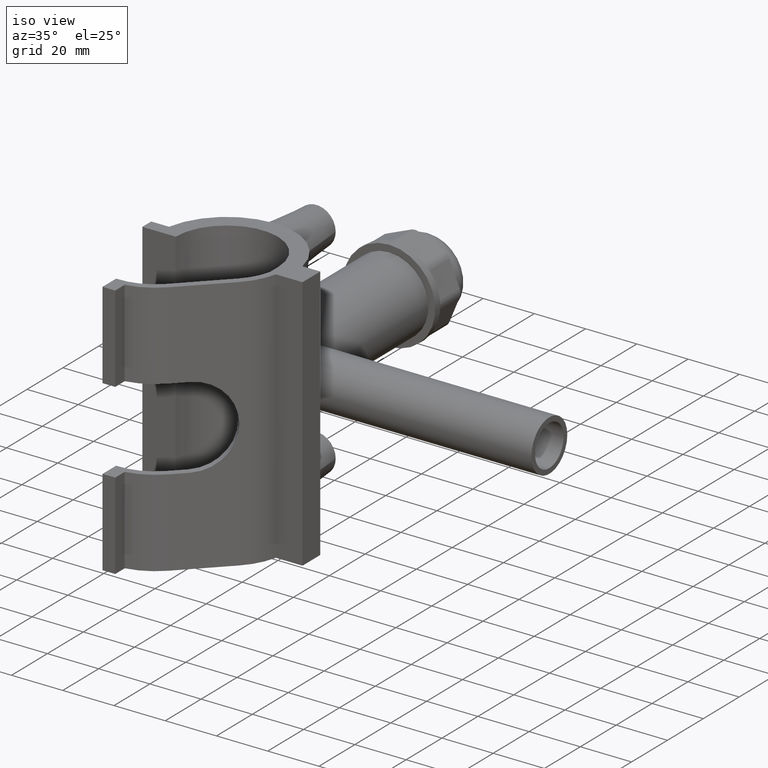
[diagram: clean part render]
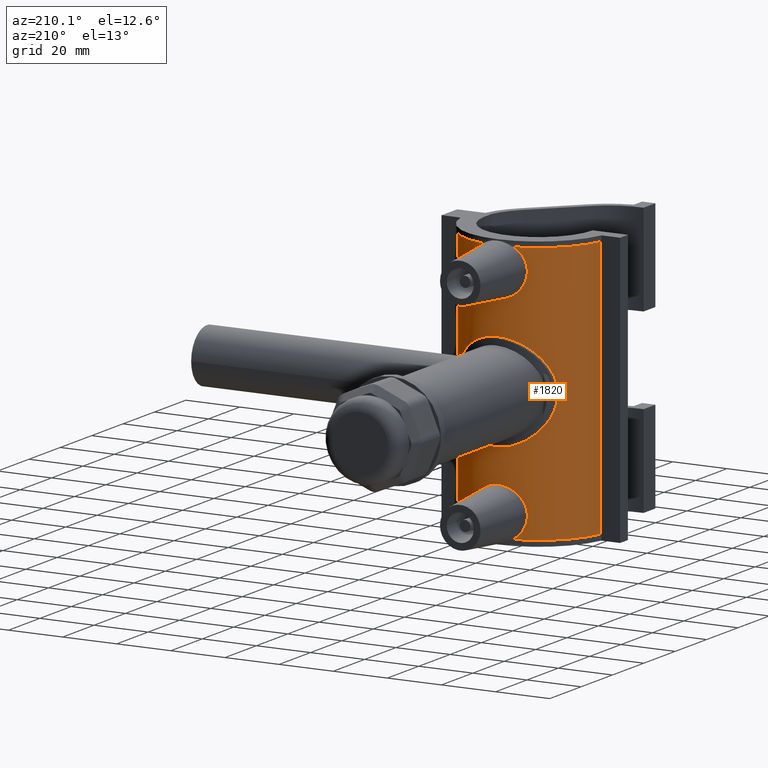
[diagram: tour spotlight — one face highlighted and labeled with its STEP entity id]
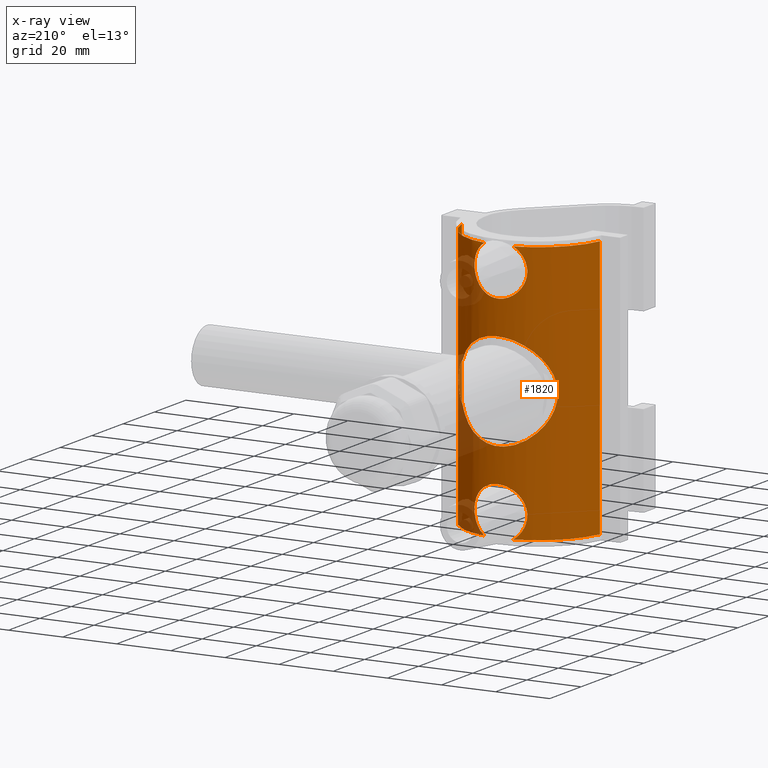
[diagram: x-ray of the same camera — body ghosted, this tour face saturated]
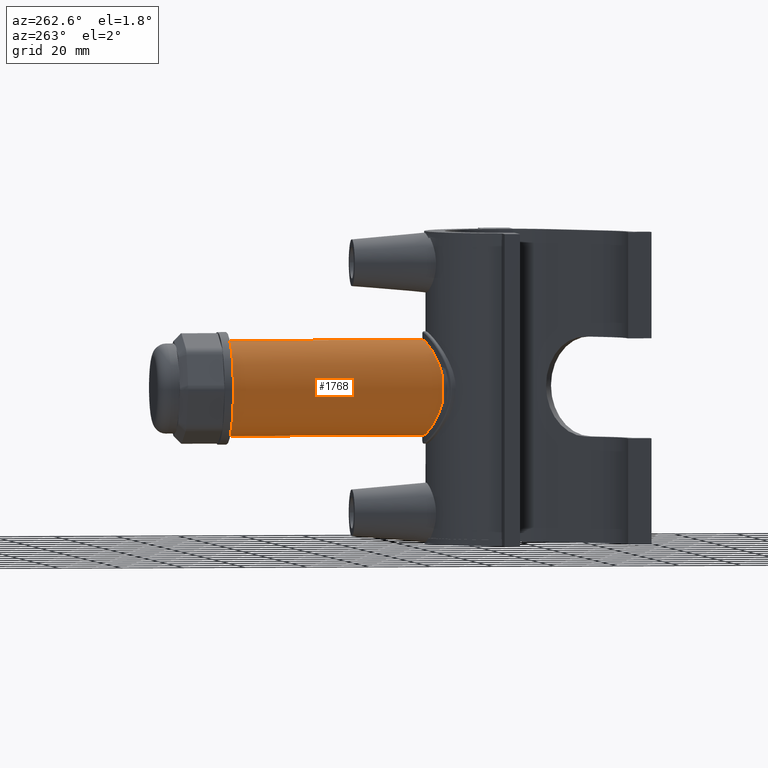
[diagram: tour spotlight — one face highlighted and labeled with its STEP entity id]
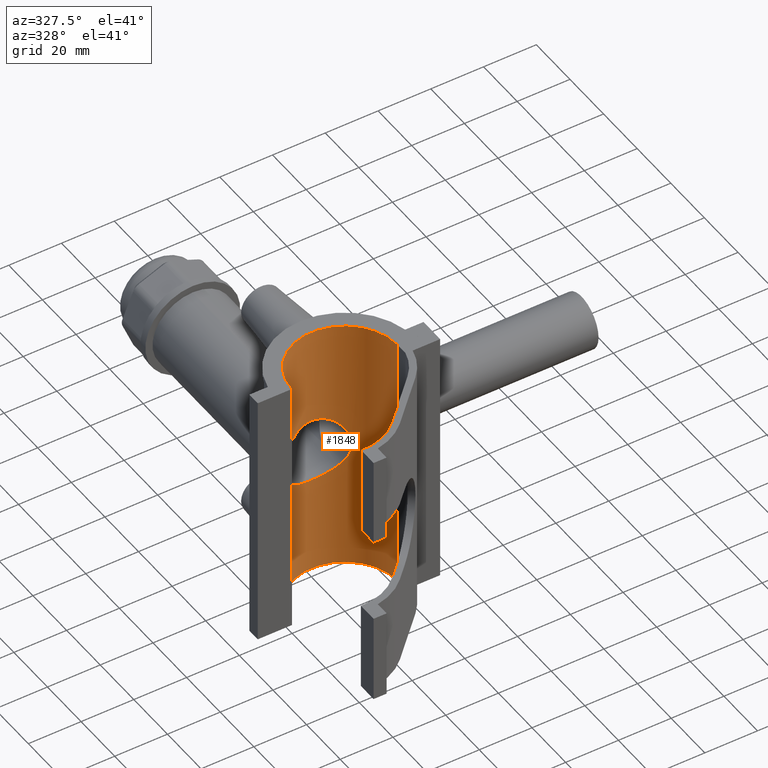
[diagram: tour spotlight — one face highlighted and labeled with its STEP entity id]
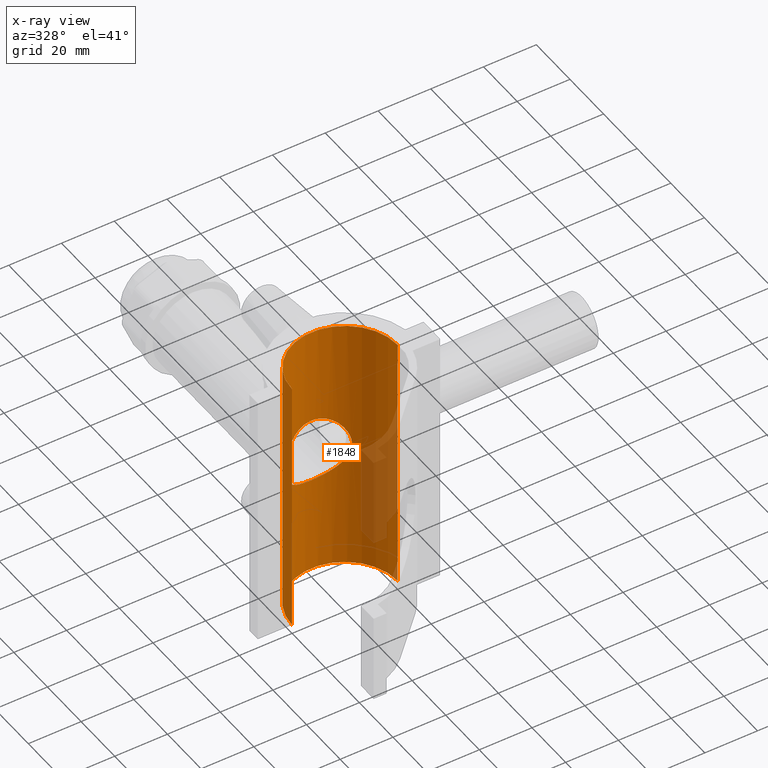
[diagram: x-ray of the same camera — body ghosted, this tour face saturated]
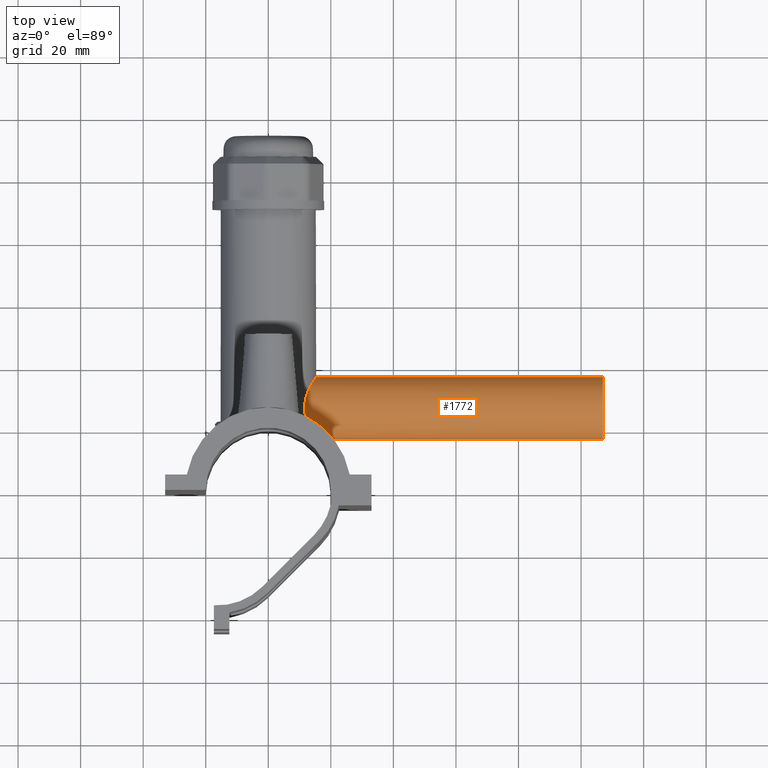
[diagram: tour spotlight — one face highlighted and labeled with its STEP entity id]
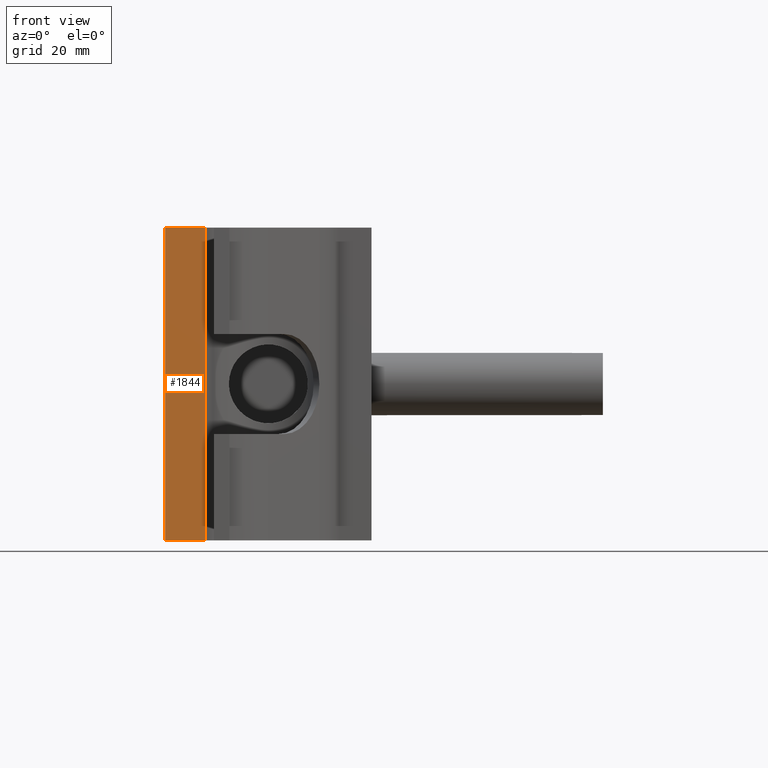
[diagram: tour spotlight — one face highlighted and labeled with its STEP entity id]
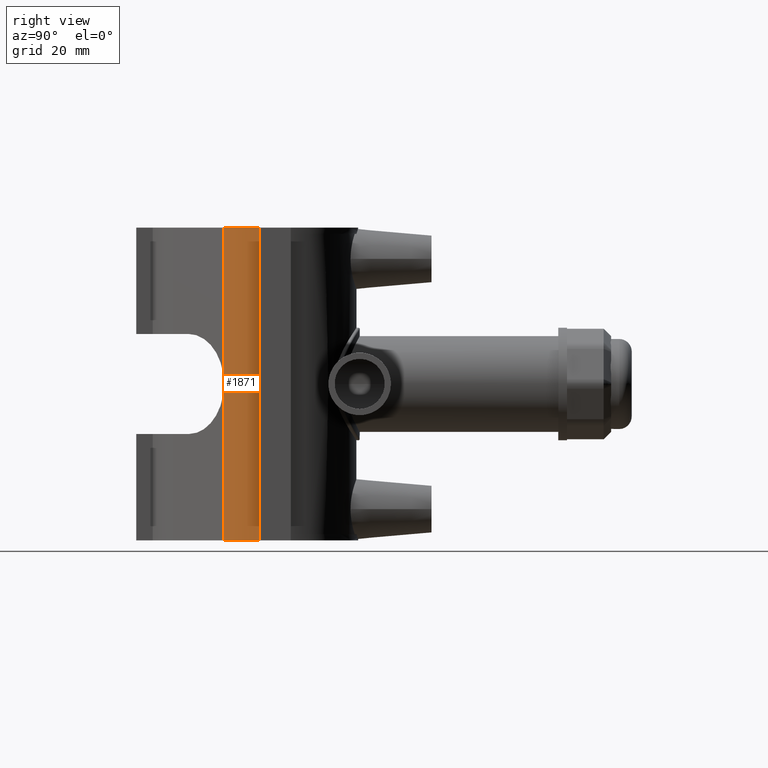
[diagram: tour spotlight — one face highlighted and labeled with its STEP entity id]
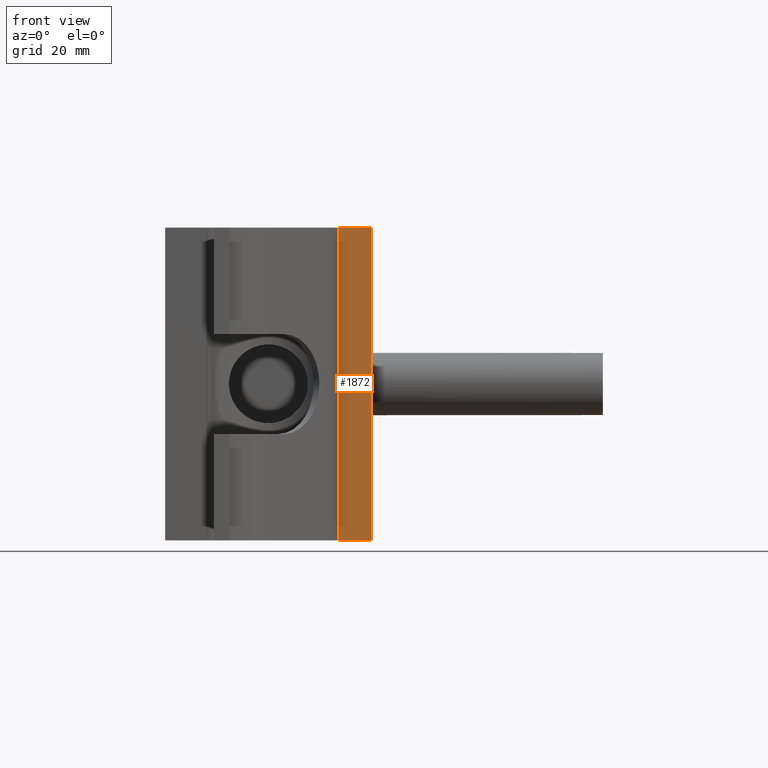
[diagram: tour spotlight — one face highlighted and labeled with its STEP entity id]
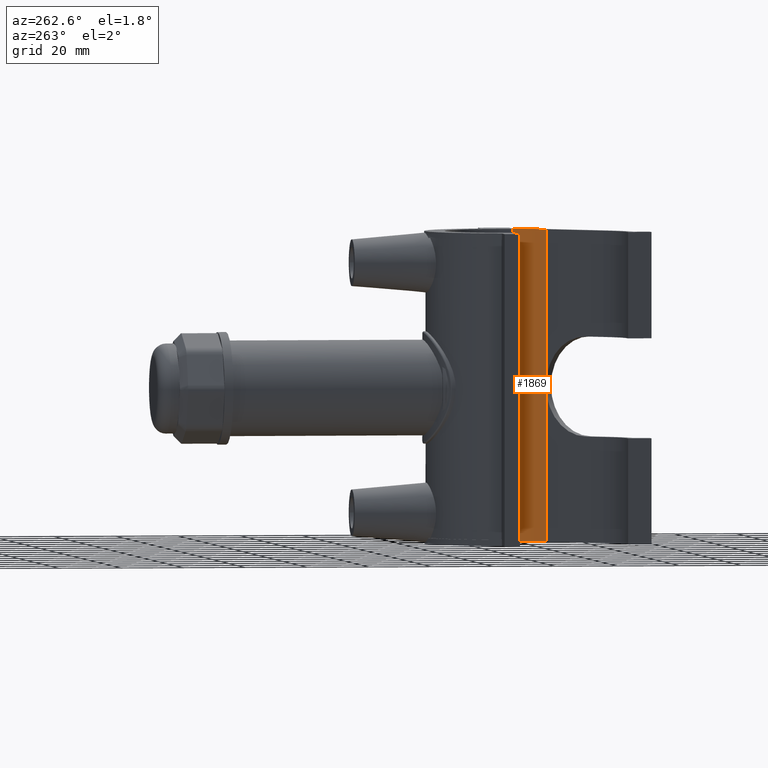
[diagram: tour spotlight — one face highlighted and labeled with its STEP entity id]
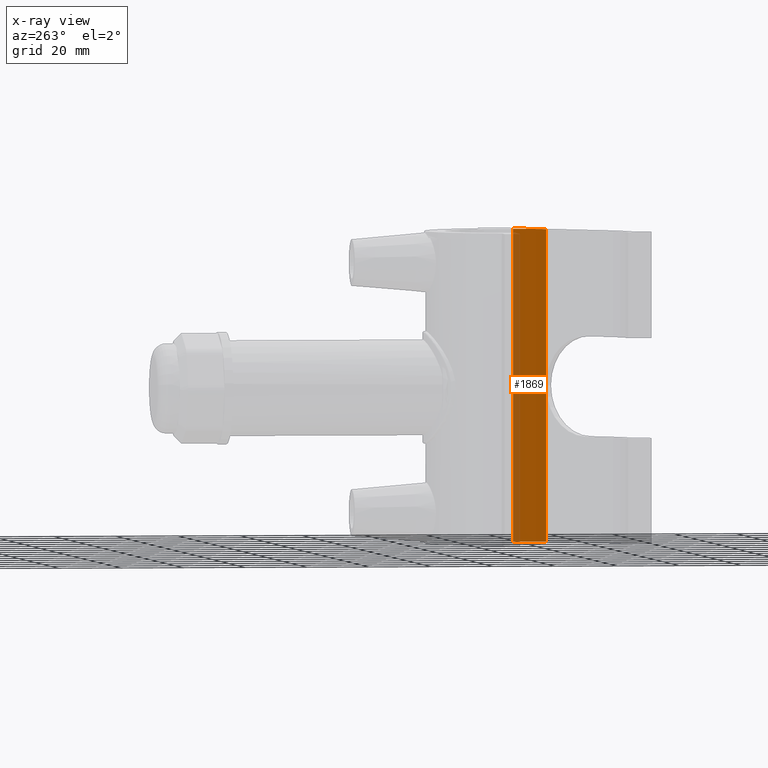
[diagram: x-ray of the same camera — body ghosted, this tour face saturated]
A machine part: a face-by-face anatomy tour. The part has 111 B-rep faces; the first image is the clean iso view, then the 8 largest visible faces are spotlighted one at a time (largest first), each with its STEP entity span.

Face 1 — auxiliary view, entity #1820. An x-ray twin of the same camera follows (body ghosted, this face saturated) — the face is partly hidden behind the body. In plain terms, the highlighted cylindrical surface (partial cylindrical patch) has radius 26 mm, axis along (0, 0, 1).
Definition (entity closure, byte-faithful):
#108=LINE('',#3112,#253);
#109=LINE('',#3153,#254);
#253=VECTOR('',#2362,96.);
#254=VECTOR('',#2367,96.);
#343=FACE_BOUND('',#589,.T.);
#367=B_SPLINE_CURVE_WITH_KNOTS('',3,(#2855,#2856,#2857,#2858,#2859,#2860,
#2861,#2862,#2863,#2864,#2865,#2866,#2867,#2868),.UNSPECIFIED.,.F.,.F.,
(4,2,2,2,2,2,4),(1.65358895762354,1.88649410704089,2.2050956171535,2.52369712726612,
2.84229863737873,3.16090014749134,3.39380529690869),.UNSPECIFIED.);
#370=B_SPLINE_CURVE_WITH_KNOTS('',3,(#3116,#3117,#3118,#3119,#3120,#3121,
#3122,#3123,#3124,#3125,#3126,#3127,#3128,#3129,#3130,#3131,#3132,#3133,
#3134,#3135,#3136,#3137,#3138,#3139,#3140),.UNSPECIFIED.,.F.,.F.,(4,2,2,
3,2,2,2,2,2,2,2,4),(4.97357930476659,5.16051763266937,5.53021928248246,
5.89992093229554,6.26962258210863,6.63932423192171,7.00711269864557,7.37490116536943,
7.74268963209329,8.11047809881715,8.48017974863023,8.84988139844332),
 .UNSPECIFIED.);
#371=B_SPLINE_CURVE_WITH_KNOTS('',3,(#3142,#3143,#3144,#3145,#3146,#3147,
#3148,#3149),.UNSPECIFIED.,.F.,.F.,(4,2,2,4),(2.94996046614777,3.31966211596086,
3.68936376577394,3.87630209367673),.UNSPECIFIED.);
#372=B_SPLINE_CURVE_WITH_KNOTS('',3,(#3157,#3158,#3159,#3160,#3161,#3162,
#3163,#3164),.UNSPECIFIED.,.F.,.F.,(4,2,2,4),(4.97357930476659,5.16051763266937,
5.53021928248246,5.89992093229554),.UNSPECIFIED.);
#373=B_SPLINE_CURVE_WITH_KNOTS('',3,(#3165,#3166,#3167,#3168,#3169,#3170,
#3171,#3172,#3173,#3174,#3175,#3176,#3177,#3178,#3179,#3180,#3181,#3182,
#3183,#3184,#3185,#3186,#3187,#3188),.UNSPECIFIED.,.F.,.F.,(4,2,2,2,2,2,
2,2,2,2,2,4),(0.,0.369701649813085,0.739403299626169,1.10719176635003,1.47498023307389,
1.84276869979774,2.2105571665216,2.58025881633469,2.94996046614777,3.31966211596086,
3.68936376577394,3.87630209367673),.UNSPECIFIED.);
#374=B_SPLINE_CURVE_WITH_KNOTS('',3,(#3189,#3190,#3191,#3192,#3193,#3194,
#3195,#3196,#3197,#3198,#3199,#3200,#3201,#3202,#3203,#3204,#3205,#3206,
#3207,#3208,#3209,#3210,#3211,#3212,#3213,#3214,#3215,#3216,#3217,#3218,
#3219,#3220,#3221,#3222,#3223,#3224,#3225,#3226,#3227,#3228,#3229,#3230,
#3231,#3232,#3233,#3234,#3235,#3236,#3237,#3238),.UNSPECIFIED.,.F.,.F.,
(4,2,2,2,2,2,2,2,2,2,2,2,2,2,2,2,2,2,2,2,2,2,2,2,4),(0.740998140179718,
1.4282482506989,1.78051013827437,2.13277202584984,2.48503391342532,2.83729580100079,
3.18955768857626,3.54181957615173,3.8940814637272,4.24634335130267,4.96046747665213,
5.31752953932685,5.67459160200158,6.0316536646763,6.38871572735103,7.10283985270048,
7.45510174027595,7.80736362785142,8.15962551542689,8.51188740300236,8.86414929057783,
9.2164111781533,9.56867306572878,9.92093495330425,10.6081850638234),
 .UNSPECIFIED.);
#394=CYLINDRICAL_SURFACE('',#1985,26.);
#466=FACE_OUTER_BOUND('',#588,.T.);
#588=EDGE_LOOP('',(#1424,#1425,#1426,#1427,#1428,#1429,#1430,#1431,#1432,
#1433));
#589=EDGE_LOOP('',(#1434,#1435));
#699=CIRCLE('',#1986,26.);
#700=CIRCLE('',#1987,26.);
#701=CIRCLE('',#1988,26.);
#702=CIRCLE('',#1989,26.);
#753=VERTEX_POINT('',#2849);
#754=VERTEX_POINT('',#2854);
#825=VERTEX_POINT('',#3108);
#826=VERTEX_POINT('',#3109);
#827=VERTEX_POINT('',#3111);
#828=VERTEX_POINT('',#3113);
#829=VERTEX_POINT('',#3115);
#830=VERTEX_POINT('',#3141);
#831=VERTEX_POINT('',#3150);
#832=VERTEX_POINT('',#3152);
#833=VERTEX_POINT('',#3154);
#834=VERTEX_POINT('',#3156);
#933=EDGE_CURVE('',#754,#753,#367,.T.);
#1045=EDGE_CURVE('',#825,#826,#699,.T.);
#1046=EDGE_CURVE('',#827,#826,#108,.T.);
#1047=EDGE_CURVE('',#827,#828,#700,.T.);
#1048=EDGE_CURVE('',#828,#829,#370,.T.);
#1049=EDGE_CURVE('',#829,#830,#371,.T.);
#1050=EDGE_CURVE('',#830,#831,#701,.T.);
#1051=EDGE_CURVE('',#831,#832,#109,.T.);
#1052=EDGE_CURVE('',#832,#833,#702,.T.);
#1053=EDGE_CURVE('',#833,#834,#372,.T.);
#1054=EDGE_CURVE('',#834,#825,#373,.T.);
#1055=EDGE_CURVE('',#753,#754,#374,.T.);
#1424=ORIENTED_EDGE('',*,*,#1045,.T.);
#1425=ORIENTED_EDGE('',*,*,#1046,.F.);
#1426=ORIENTED_EDGE('',*,*,#1047,.T.);
#1427=ORIENTED_EDGE('',*,*,#1048,.T.);
#1428=ORIENTED_EDGE('',*,*,#1049,.T.);
#1429=ORIENTED_EDGE('',*,*,#1050,.T.);
#1430=ORIENTED_EDGE('',*,*,#1051,.T.);
#1431=ORIENTED_EDGE('',*,*,#1052,.T.);
#1432=ORIENTED_EDGE('',*,*,#1053,.T.);
#1433=ORIENTED_EDGE('',*,*,#1054,.T.);
#1434=ORIENTED_EDGE('',*,*,#933,.T.);
#1435=ORIENTED_EDGE('',*,*,#1055,.T.);
#1820=ADVANCED_FACE('',(#466,#343),#394,.T.);
#1985=AXIS2_PLACEMENT_3D('',#3107,#2358,#2359);
#1986=AXIS2_PLACEMENT_3D('',#3110,#2360,#2361);
#1987=AXIS2_PLACEMENT_3D('',#3114,#2363,#2364);
#1988=AXIS2_PLACEMENT_3D('',#3151,#2365,#2366);
#1989=AXIS2_PLACEMENT_3D('',#3155,#2368,#2369);
#2358=DIRECTION('center_axis',(0.,0.,1.));
#2359=DIRECTION('ref_axis',(1.,0.,0.));
#2360=DIRECTION('center_axis',(0.,0.,1.));
#2361=DIRECTION('ref_axis',(1.,0.,0.));
#2362=DIRECTION('',(0.,0.,-1.));
#2363=DIRECTION('center_axis',(0.,0.,-1.));
#2364=DIRECTION('ref_axis',(1.,0.,0.));
#2365=DIRECTION('center_axis',(0.,0.,-1.));
#2366=DIRECTION('ref_axis',(1.,0.,0.));
#2367=DIRECTION('',(0.,0.,-1.));
#2368=DIRECTION('center_axis',(0.,0.,1.));
#2369=DIRECTION('ref_axis',(1.,0.,0.));
#2849=CARTESIAN_POINT('',(16.4745800099161,20.114378277662,7.25177312778545));
#2854=CARTESIAN_POINT('',(16.4745800099161,20.114378277662,-7.25177312778545));
#2855=CARTESIAN_POINT('Ctrl Pts',(16.4745800099159,20.114378277662,-7.25177312778516));
#2856=CARTESIAN_POINT('Ctrl Pts',(16.9745973553065,19.7048415945355,-6.86291448152867));
#2857=CARTESIAN_POINT('Ctrl Pts',(17.4328907652017,19.2980031376088,-6.41197461018095));
#2858=CARTESIAN_POINT('Ctrl Pts',(18.4050355010115,18.3807199691082,-5.14980296472239));
#2859=CARTESIAN_POINT('Ctrl Pts',(18.8874838523196,17.8740711701891,-4.22866055725826));
#2860=CARTESIAN_POINT('Ctrl Pts',(19.5190983693987,17.1820900864112,-2.18468285039914));
#2861=CARTESIAN_POINT('Ctrl Pts',(19.672315572906,17.,-1.06200503370871));
#2862=CARTESIAN_POINT('Ctrl Pts',(19.672315572906,17.,1.06200503370871));
#2863=CARTESIAN_POINT('Ctrl Pts',(19.5190983693987,17.1820900864112,2.18468285039914));
#2864=CARTESIAN_POINT('Ctrl Pts',(18.8874838523196,17.8740711701891,4.22866055725826));
#2865=CARTESIAN_POINT('Ctrl Pts',(18.4050355010115,18.3807199691082,5.14980296472239));
#2866=CARTESIAN_POINT('Ctrl Pts',(17.4328907652017,19.2980031376088,6.41197461018095));
#2867=CARTESIAN_POINT('Ctrl Pts',(16.9745973553065,19.7048415945355,6.86291448152867));
#2868=CARTESIAN_POINT('Ctrl Pts',(16.4745800099159,20.114378277662,7.25177312778516));
#3107=CARTESIAN_POINT('Origin',(0.,0.,0.));
#3108=CARTESIAN_POINT('',(-5.3951674336109,25.4340749460896,-48.));
#3109=CARTESIAN_POINT('',(-25.5147016443462,5.,-48.));
#3110=CARTESIAN_POINT('Origin',(0.,0.,-48.));
#3111=CARTESIAN_POINT('',(-25.5147016443462,5.,48.));
#3112=CARTESIAN_POINT('',(-25.5147016443462,5.,0.));
#3113=CARTESIAN_POINT('',(-5.3951674336109,25.4340749460896,48.));
#3114=CARTESIAN_POINT('Origin',(0.,0.,48.));
#3115=CARTESIAN_POINT('',(9.76630249195255,24.096043983104,40.));
#3116=CARTESIAN_POINT('Ctrl Pts',(-5.3951674336109,25.4340749460896,48.));
#3117=CARTESIAN_POINT('Ctrl Pts',(-5.93451184178679,25.3196672708485,47.6483411838531));
#3118=CARTESIAN_POINT('Ctrl Pts',(-6.42972331783999,25.1965310724773,47.2485693515817));
#3119=CARTESIAN_POINT('Ctrl Pts',(-7.73484343137409,24.8390807172828,45.9790627512517));
#3120=CARTESIAN_POINT('Ctrl Pts',(-8.49387395753575,24.5794092044208,44.9067073127729));
#3121=CARTESIAN_POINT('Ctrl Pts',(-9.50996216014971,24.2044189053942,42.5340450094426));
#3122=CARTESIAN_POINT('Ctrl Pts',(-9.76630249195255,24.096043983104,41.2323388327103));
#3123=CARTESIAN_POINT('Ctrl Pts',(-9.76630249195255,24.096043983104,40.));
#3124=CARTESIAN_POINT('Ctrl Pts',(-9.76630249195255,24.096043983104,38.7676611672897));
#3125=CARTESIAN_POINT('Ctrl Pts',(-9.50996216014971,24.2044189053943,37.4659549905574));
#3126=CARTESIAN_POINT('Ctrl Pts',(-8.49387395753574,24.5794092044208,35.0932926872271));
#3127=CARTESIAN_POINT('Ctrl Pts',(-7.73484343137409,24.8390807172828,34.0209372487483));
#3128=CARTESIAN_POINT('Ctrl Pts',(-6.00569492756996,25.3126652865951,32.3389729484772));
#3129=CARTESIAN_POINT('Ctrl Pts',(-4.91758131382388,25.5592379122145,31.6109466468528));
#3130=CARTESIAN_POINT('Ctrl Pts',(-2.528128502029,25.9049380292898,30.6412987795354));
#3131=CARTESIAN_POINT('Ctrl Pts',(-1.22596155574619,26.,30.4002720753778));
#3132=CARTESIAN_POINT('Ctrl Pts',(1.22596155574619,26.,30.4002720753778));
#3133=CARTESIAN_POINT('Ctrl Pts',(2.528128502029,25.9049380292898,30.6412987795354));
#3134=CARTESIAN_POINT('Ctrl Pts',(4.91758131382388,25.5592379122145,31.6109466468528));
#3135=CARTESIAN_POINT('Ctrl Pts',(6.00569492756995,25.3126652865951,32.3389729484772));
#3136=CARTESIAN_POINT('Ctrl Pts',(7.73484343137408,24.8390807172828,34.0209372487483));
#3137=CARTESIAN_POINT('Ctrl Pts',(8.49387395753574,24.5794092044208,35.0932926872271));
#3138=CARTESIAN_POINT('Ctrl Pts',(9.50996216014971,24.2044189053942,37.4659549905574));
#3139=CARTESIAN_POINT('Ctrl Pts',(9.76630249195255,24.096043983104,38.7676611672897));
#3140=CARTESIAN_POINT('Ctrl Pts',(9.76630249195255,24.096043983104,40.));
#3141=CARTESIAN_POINT('',(5.3951674336109,25.4340749460896,48.));
#3142=CARTESIAN_POINT('Ctrl Pts',(9.76630249195255,24.096043983104,40.));
#3143=CARTESIAN_POINT('Ctrl Pts',(9.76630249195255,24.096043983104,41.2323388327103));
#3144=CARTESIAN_POINT('Ctrl Pts',(9.50996216014971,24.2044189053942,42.5340450094426));
#3145=CARTESIAN_POINT('Ctrl Pts',(8.49387395753575,24.5794092044208,44.9067073127729));
#3146=CARTESIAN_POINT('Ctrl Pts',(7.73484343137409,24.8390807172828,45.9790627512517));
#3147=CARTESIAN_POINT('Ctrl Pts',(6.42972331783999,25.1965310724773,47.2485693515817));
#3148=CARTESIAN_POINT('Ctrl Pts',(5.93451184178679,25.3196672708485,47.6483411838531));
#3149=CARTESIAN_POINT('Ctrl Pts',(5.3951674336109,25.4340749460896,48.));
#3150=CARTESIAN_POINT('',(25.5147016443462,4.99999999999999,48.));
#3151=CARTESIAN_POINT('Origin',(0.,0.,48.));
#3152=CARTESIAN_POINT('',(25.5147016443462,4.99999999999999,-48.));
#3153=CARTESIAN_POINT('',(25.5147016443462,4.99999999999999,0.));
#3154=CARTESIAN_POINT('',(5.3951674336109,25.4340749460896,-48.));
#3155=CARTESIAN_POINT('Origin',(0.,0.,-48.));
#3156=CARTESIAN_POINT('',(9.76630249195255,24.096043983104,-40.));
#3157=CARTESIAN_POINT('Ctrl Pts',(5.3951674336109,25.4340749460896,-48.));
#3158=CARTESIAN_POINT('Ctrl Pts',(5.93451184178679,25.3196672708485,-47.6483411838531));
#3159=CARTESIAN_POINT('Ctrl Pts',(6.42972331783999,25.1965310724773,-47.2485693515817));
#3160=CARTESIAN_POINT('Ctrl Pts',(7.73484343137409,24.8390807172828,-45.9790627512517));
#3161=CARTESIAN_POINT('Ctrl Pts',(8.49387395753574,24.5794092044208,-44.9067073127729));
#3162=CARTESIAN_POINT('Ctrl Pts',(9.5099621601497,24.2044189053942,-42.5340450094426));
#3163=CARTESIAN_POINT('Ctrl Pts',(9.76630249195255,24.096043983104,-41.2323388327103));
#3164=CARTESIAN_POINT('Ctrl Pts',(9.76630249195255,24.096043983104,-40.));
#3165=CARTESIAN_POINT('Ctrl Pts',(9.76630249195255,24.096043983104,-40.));
#3166=CARTESIAN_POINT('Ctrl Pts',(9.76630249195255,24.096043983104,-38.7676611672897));
#3167=CARTESIAN_POINT('Ctrl Pts',(9.5099621601497,24.2044189053943,-37.4659549905574));
#3168=CARTESIAN_POINT('Ctrl Pts',(8.49387395753574,24.5794092044208,-35.0932926872271));
#3169=CARTESIAN_POINT('Ctrl Pts',(7.73484343137408,24.8390807172828,-34.0209372487483));
#3170=CARTESIAN_POINT('Ctrl Pts',(6.00569492756995,25.3126652865951,-32.3389729484772));
#3171=CARTESIAN_POINT('Ctrl Pts',(4.91758131382388,25.5592379122145,-31.6109466468528));
#3172=CARTESIAN_POINT('Ctrl Pts',(2.528128502029,25.9049380292898,-30.6412987795354));
#3173=CARTESIAN_POINT('Ctrl Pts',(1.22596155574619,26.,-30.4002720753778));
#3174=CARTESIAN_POINT('Ctrl Pts',(-1.22596155574619,26.,-30.4002720753778));
#3175=CARTESIAN_POINT('Ctrl Pts',(-2.528128502029,25.9049380292898,-30.6412987795354));
#3176=CARTESIAN_POINT('Ctrl Pts',(-4.91758131382388,25.5592379122145,-31.6109466468528));
#3177=CARTESIAN_POINT('Ctrl Pts',(-6.00569492756996,25.3126652865951,-32.3389729484772));
#3178=CARTESIAN_POINT('Ctrl Pts',(-7.73484343137409,24.8390807172828,-34.0209372487483));
#3179=CARTESIAN_POINT('Ctrl Pts',(-8.49387395753574,24.5794092044208,-35.0932926872271));
#3180=CARTESIAN_POINT('Ctrl Pts',(-9.50996216014971,24.2044189053943,-37.4659549905574));
#3181=CARTESIAN_POINT('Ctrl Pts',(-9.76630249195255,24.096043983104,-38.7676611672897));
#3182=CARTESIAN_POINT('Ctrl Pts',(-9.76630249195255,24.096043983104,-41.2323388327103));
#3183=CARTESIAN_POINT('Ctrl Pts',(-9.50996216014972,24.2044189053942,-42.5340450094426));
#3184=CARTESIAN_POINT('Ctrl Pts',(-8.49387395753575,24.5794092044208,-44.9067073127729));
#3185=CARTESIAN_POINT('Ctrl Pts',(-7.73484343137408,24.8390807172828,-45.9790627512517));
#3186=CARTESIAN_POINT('Ctrl Pts',(-6.42972331783999,25.1965310724773,-47.2485693515817));
#3187=CARTESIAN_POINT('Ctrl Pts',(-5.93451184178679,25.3196672708485,-47.6483411838531));
#3188=CARTESIAN_POINT('Ctrl Pts',(-5.39516743361091,25.4340749460896,-48.));
#3189=CARTESIAN_POINT('Ctrl Pts',(16.4745800099161,20.1143782776618,7.25177312778561));
#3190=CARTESIAN_POINT('Ctrl Pts',(15.5528785373224,20.8692932169103,9.34569476431894));
#3191=CARTESIAN_POINT('Ctrl Pts',(14.2334944534669,21.8263328679884,11.2223496692489));
#3192=CARTESIAN_POINT('Ctrl Pts',(11.9562149861488,23.1048079803976,13.4996291365669));
#3193=CARTESIAN_POINT('Ctrl Pts',(11.0808501527128,23.5436566291891,14.2325620782425));
#3194=CARTESIAN_POINT('Ctrl Pts',(9.15831442918429,24.3559907288748,15.5395090124102));
#3195=CARTESIAN_POINT('Ctrl Pts',(8.11101055590943,24.729045980526,16.11359473591));
#3196=CARTESIAN_POINT('Ctrl Pts',(5.90306288556097,25.3469537157066,17.046709025924));
#3197=CARTESIAN_POINT('Ctrl Pts',(4.74002611958919,25.5921162321482,17.4065092815395));
#3198=CARTESIAN_POINT('Ctrl Pts',(2.37563064979923,25.9187314481245,17.8832545139332));
#3199=CARTESIAN_POINT('Ctrl Pts',(1.17420629191824,26.,18.));
#3200=CARTESIAN_POINT('Ctrl Pts',(-1.17420629191824,26.,18.));
#3201=CARTESIAN_POINT('Ctrl Pts',(-2.37563064979923,25.9187314481245,17.8832545139332));
#3202=CARTESIAN_POINT('Ctrl Pts',(-4.74002611958918,25.5921162321482,17.4065092815395));
#3203=CARTESIAN_POINT('Ctrl Pts',(-5.90306288556096,25.3469537157066,17.046709025924));
#3204=CARTESIAN_POINT('Ctrl Pts',(-8.11101055590942,24.729045980526,16.11359473591));
#3205=CARTESIAN_POINT('Ctrl Pts',(-9.15831442918429,24.3559907288748,15.5395090124102));
#3206=CARTESIAN_POINT('Ctrl Pts',(-11.0808501527128,23.5436566291891,14.2325620782425));
#3207=CARTESIAN_POINT('Ctrl Pts',(-11.9562149861488,23.1048079803976,13.4996291365669));
#3208=CARTESIAN_POINT('Ctrl Pts',(-14.2923678885879,21.7932810521422,11.1634762341278));
#3209=CARTESIAN_POINT('Ctrl Pts',(-15.6545213016262,20.7938080945865,9.19797308121408));
#3210=CARTESIAN_POINT('Ctrl Pts',(-17.0441517717604,19.6432831043967,5.90876507937211));
#3211=CARTESIAN_POINT('Ctrl Pts',(-17.4023690971889,19.3200268109012,4.7545801748869));
#3212=CARTESIAN_POINT('Ctrl Pts',(-17.8804412616865,18.8784455823717,2.39547529200529));
#3213=CARTESIAN_POINT('Ctrl Pts',(-18.,18.7616630392937,1.19020687558242));
#3214=CARTESIAN_POINT('Ctrl Pts',(-18.,18.7616630392937,-1.19020687558242));
#3215=CARTESIAN_POINT('Ctrl Pts',(-17.8804412616865,18.8784455823717,-2.39547529200528));
#3216=CARTESIAN_POINT('Ctrl Pts',(-17.4023690971889,19.3200268109012,-4.7545801748869));
#3217=CARTESIAN_POINT('Ctrl Pts',(-17.0441517717604,19.6432831043967,-5.90876507937211));
#3218=CARTESIAN_POINT('Ctrl Pts',(-15.6545213016262,20.7938080945865,-9.19797308121407));
#3219=CARTESIAN_POINT('Ctrl Pts',(-14.2923678885879,21.7932810521422,-11.1634762341278));
#3220=CARTESIAN_POINT('Ctrl Pts',(-11.9562149861488,23.1048079803976,-13.4996291365669));
#3221=CARTESIAN_POINT('Ctrl Pts',(-11.0808501527128,23.5436566291891,-14.2325620782425));
#3222=CARTESIAN_POINT('Ctrl Pts',(-9.15831442918428,24.3559907288748,-15.5395090124102));
#3223=CARTESIAN_POINT('Ctrl Pts',(-8.11101055590943,24.729045980526,-16.11359473591));
#3224=CARTESIAN_POINT('Ctrl Pts',(-5.90306288556097,25.3469537157066,-17.046709025924));
#3225=CARTESIAN_POINT('Ctrl Pts',(-4.74002611958919,25.5921162321482,-17.4065092815395));
#3226=CARTESIAN_POINT('Ctrl Pts',(-2.37563064979923,25.9187314481245,-17.8832545139332));
#3227=CARTESIAN_POINT('Ctrl Pts',(-1.17420629191824,26.,-18.));
#3228=CARTESIAN_POINT('Ctrl Pts',(1.17420629191823,26.,-18.));
#3229=CARTESIAN_POINT('Ctrl Pts',(2.37563064979922,25.9187314481245,-17.8832545139332));
#3230=CARTESIAN_POINT('Ctrl Pts',(4.74002611958918,25.5921162321482,-17.4065092815395));
#3231=CARTESIAN_POINT('Ctrl Pts',(5.90306288556096,25.3469537157066,-17.046709025924));
#3232=CARTESIAN_POINT('Ctrl Pts',(8.11101055590941,24.729045980526,-16.11359473591));
#3233=CARTESIAN_POINT('Ctrl Pts',(9.15831442918429,24.3559907288748,-15.5395090124102));
#3234=CARTESIAN_POINT('Ctrl Pts',(11.0808501527128,23.5436566291891,-14.2325620782425));
#3235=CARTESIAN_POINT('Ctrl Pts',(11.9562149861488,23.1048079803976,-13.4996291365669));
#3236=CARTESIAN_POINT('Ctrl Pts',(14.2334944534669,21.8263328679884,-11.2223496692489));
#3237=CARTESIAN_POINT('Ctrl Pts',(15.5528785373224,20.8692932169103,-9.34569476431894));
#3238=CARTESIAN_POINT('Ctrl Pts',(16.4745800099161,20.1143782776618,-7.25177312778561));

Face 2 — auxiliary view, entity #1768. In plain terms, the highlighted cylindrical surface (bore or boss wall) has radius 15.3 mm, axis along (0, 1, 0).
Definition (entity closure, byte-faithful):
#335=FACE_BOUND('',#529,.T.);
#357=B_SPLINE_CURVE_WITH_KNOTS('',3,(#2722,#2723,#2724,#2725,#2726,#2727,
#2728,#2729,#2730,#2731,#2732,#2733,#2734,#2735,#2736,#2737,#2738,#2739,
#2740,#2741),.UNSPECIFIED.,.F.,.F.,(4,2,2,2,2,2,2,2,2,4),(5.16046728821475,
5.33049740244527,5.92405603939537,6.51473209381906,6.81007012103091,7.10540814824276,
7.40074617545461,7.69608420266646,8.28676025709016,8.4521786753417),
 .UNSPECIFIED.);
#358=B_SPLINE_CURVE_WITH_KNOTS('',3,(#2745,#2746,#2747,#2748,#2749,#2750,
#2751,#2752,#2753,#2754,#2755,#2756,#2757,#2758,#2759,#2760,#2761,#2762,
#2763,#2764),.UNSPECIFIED.,.F.,.F.,(4,2,2,2,2,2,2,2,2,4),(1.02169885564865,
1.18711727390019,1.77779332832389,2.07313135553574,2.36846938274759,2.66380740995944,
2.95914543717129,3.54982149159498,4.14338012854508,4.31341024277561),
 .UNSPECIFIED.);
#359=B_SPLINE_CURVE_WITH_KNOTS('',3,(#2765,#2766,#2767,#2768,#2769,#2770,
#2771,#2772,#2773,#2774,#2775,#2776,#2777,#2778,#2779,#2780,#2781,#2782,
#2783,#2784,#2785,#2786,#2787,#2788,#2789,#2790,#2791,#2792,#2793,#2794,
#2795),.UNSPECIFIED.,.F.,.F.,(4,2,2,2,2,2,2,2,2,2,2,2,3,2,4),(-3.40385194957377,
-3.32913305534855,-3.13238278879682,-2.93563252224509,-2.73888225569336,
-2.34538172258991,-1.95578655849416,-1.56619139439841,-1.17659623030266,
-0.787001066206913,-0.393500533103456,-0.196750266551728,0.,0.196750266551728,
0.271469160776951),.UNSPECIFIED.);
#381=CYLINDRICAL_SURFACE('',#1884,15.3);
#414=FACE_OUTER_BOUND('',#528,.T.);
#528=EDGE_LOOP('',(#1181));
#529=EDGE_LOOP('',(#1182,#1183,#1184,#1185));
#658=CIRCLE('',#1885,15.3);
#659=CIRCLE('',#1886,15.3);
#741=VERTEX_POINT('',#2718);
#742=VERTEX_POINT('',#2720);
#743=VERTEX_POINT('',#2721);
#744=VERTEX_POINT('',#2742);
#745=VERTEX_POINT('',#2744);
#917=EDGE_CURVE('',#741,#741,#658,.T.);
#918=EDGE_CURVE('',#742,#743,#357,.T.);
#919=EDGE_CURVE('',#742,#744,#659,.T.);
#920=EDGE_CURVE('',#745,#744,#358,.T.);
#921=EDGE_CURVE('',#745,#743,#359,.T.);
#1181=ORIENTED_EDGE('',*,*,#917,.F.);
#1182=ORIENTED_EDGE('',*,*,#918,.F.);
#1183=ORIENTED_EDGE('',*,*,#919,.T.);
#1184=ORIENTED_EDGE('',*,*,#920,.F.);
#1185=ORIENTED_EDGE('',*,*,#921,.T.);
#1768=ADVANCED_FACE('',(#414,#335),#381,.T.);
#1884=AXIS2_PLACEMENT_3D('',#2717,#2090,#2091);
#1885=AXIS2_PLACEMENT_3D('',#2719,#2092,#2093);
#1886=AXIS2_PLACEMENT_3D('',#2743,#2094,#2095);
#2090=DIRECTION('center_axis',(0.,1.,3.06161699786838E-16));
#2091=DIRECTION('ref_axis',(0.,0.,1.));
#2092=DIRECTION('center_axis',(0.,1.,3.06161699786838E-16));
#2093=DIRECTION('ref_axis',(1.,0.,0.));
#2094=DIRECTION('center_axis',(0.,1.,3.06161699786838E-16));
#2095=DIRECTION('ref_axis',(1.,0.,0.));
#2717=CARTESIAN_POINT('Origin',(0.,56.6,1.12055182121983E-14));
#2718=CARTESIAN_POINT('',(0.,90.5,15.3));
#2719=CARTESIAN_POINT('Origin',(0.,90.5,2.15843998349721E-14));
#2720=CARTESIAN_POINT('',(-14.6925695506266,22.7,-4.26830177002507));
#2721=CARTESIAN_POINT('',(11.8940693887867,24.2835893845509,-9.62398635547282));
#2722=CARTESIAN_POINT('Ctrl Pts',(-14.6925695506266,22.7,-4.26830177002508));
#2723=CARTESIAN_POINT('Ctrl Pts',(-14.5294683558704,22.8055672091518,-4.82973715507102));
#2724=CARTESIAN_POINT('Ctrl Pts',(-14.3340538102718,22.9295930061459,-5.38181479090957));
#2725=CARTESIAN_POINT('Ctrl Pts',(-13.3224697257521,23.5483115661636,-7.79317852981522));
#2726=CARTESIAN_POINT('Ctrl Pts',(-12.1555192955199,24.1977794691887,-9.48194820878839));
#2727=CARTESIAN_POINT('Ctrl Pts',(-9.48844022896799,25.362138471435,-12.1490272753403));
#2728=CARTESIAN_POINT('Ctrl Pts',(-7.79772697499589,25.9627825102212,-13.3205927543016));
#2729=CARTESIAN_POINT('Ctrl Pts',(-4.97895268688466,26.5950914078785,-14.50304173322));
#2730=CARTESIAN_POINT('Ctrl Pts',(-3.99274416710978,26.7624587627705,-14.8048955162952));
#2731=CARTESIAN_POINT('Ctrl Pts',(-1.99551992068446,26.9849792525883,-15.2034482103224));
#2732=CARTESIAN_POINT('Ctrl Pts',(-0.984460090706165,27.04,-15.3));
#2733=CARTESIAN_POINT('Ctrl Pts',(0.984460090706161,27.04,-15.3));
#2734=CARTESIAN_POINT('Ctrl Pts',(1.99551992068446,26.9849792525883,-15.2034482103224));
#2735=CARTESIAN_POINT('Ctrl Pts',(3.99274416710978,26.7624587627705,-14.8048955162952));
#2736=CARTESIAN_POINT('Ctrl Pts',(4.97895268688465,26.5950914078785,-14.50304173322));
#2737=CARTESIAN_POINT('Ctrl Pts',(7.79772697499589,25.9627825102212,-13.3205927543016));
#2738=CARTESIAN_POINT('Ctrl Pts',(9.48844022896798,25.362138471435,-12.1490272753403));
#2739=CARTESIAN_POINT('Ctrl Pts',(11.1912815281605,24.6187339653681,-10.4461859761479));
#2740=CARTESIAN_POINT('Ctrl Pts',(11.551735233591,24.4512641924338,-10.0470694779726));
#2741=CARTESIAN_POINT('Ctrl Pts',(11.8940693888059,24.2835893840732,-9.62398635567768));
#2742=CARTESIAN_POINT('',(-14.6925695506266,22.7,4.26830177002506));
#2743=CARTESIAN_POINT('Origin',(0.,22.7,8.26636589424469E-16));
#2744=CARTESIAN_POINT('',(11.8940693887867,24.2835893845508,9.62398635547282));
#2745=CARTESIAN_POINT('Ctrl Pts',(11.8940693888059,24.2835893840732,9.62398635567767));
#2746=CARTESIAN_POINT('Ctrl Pts',(11.551735233591,24.4512641924338,10.0470694779726));
#2747=CARTESIAN_POINT('Ctrl Pts',(11.1912815281605,24.6187339653681,10.4461859761479));
#2748=CARTESIAN_POINT('Ctrl Pts',(9.48844022896798,25.362138471435,12.1490272753403));
#2749=CARTESIAN_POINT('Ctrl Pts',(7.79772697499589,25.9627825102212,13.3205927543016));
#2750=CARTESIAN_POINT('Ctrl Pts',(4.97895268688465,26.5950914078785,14.5030417332201));
#2751=CARTESIAN_POINT('Ctrl Pts',(3.99274416710977,26.7624587627705,14.8048955162952));
#2752=CARTESIAN_POINT('Ctrl Pts',(1.99551992068446,26.9849792525883,15.2034482103224));
#2753=CARTESIAN_POINT('Ctrl Pts',(0.984460090706163,27.04,15.3));
#2754=CARTESIAN_POINT('Ctrl Pts',(-0.984460090706163,27.04,15.3));
#2755=CARTESIAN_POINT('Ctrl Pts',(-1.99551992068446,26.9849792525883,15.2034482103224));
#2756=CARTESIAN_POINT('Ctrl Pts',(-3.99274416710978,26.7624587627705,14.8048955162952));
#2757=CARTESIAN_POINT('Ctrl Pts',(-4.97895268688465,26.5950914078785,14.5030417332201));
#2758=CARTESIAN_POINT('Ctrl Pts',(-7.79772697499589,25.9627825102212,13.3205927543016));
#2759=CARTESIAN_POINT('Ctrl Pts',(-9.48844022896798,25.362138471435,12.1490272753403));
#2760=CARTESIAN_POINT('Ctrl Pts',(-12.1555192955199,24.1977794691887,9.4819482087884));
#2761=CARTESIAN_POINT('Ctrl Pts',(-13.3224697257521,23.5483115661636,7.79317852981523));
#2762=CARTESIAN_POINT('Ctrl Pts',(-14.3340538102718,22.9295930061459,5.38181479090957));
#2763=CARTESIAN_POINT('Ctrl Pts',(-14.5294683558704,22.8055672091518,4.82973715507101));
#2764=CARTESIAN_POINT('Ctrl Pts',(-14.6925695506266,22.7,4.26830177002507));
#2765=CARTESIAN_POINT('Ctrl Pts',(11.8940693889716,24.2835893849285,9.62398635547282));
#2766=CARTESIAN_POINT('Ctrl Pts',(11.8383622972846,24.5275083308742,9.69283350357866));
#2767=CARTESIAN_POINT('Ctrl Pts',(11.7891364124174,24.7742972929722,9.75246251045036));
#2768=CARTESIAN_POINT('Ctrl Pts',(11.6371629775274,25.6772404008083,9.93458568106412));
#2769=CARTESIAN_POINT('Ctrl Pts',(11.579723658188,26.3441657781609,10.));
#2770=CARTESIAN_POINT('Ctrl Pts',(11.579723658188,27.6558342218391,10.));
#2771=CARTESIAN_POINT('Ctrl Pts',(11.6371629775274,28.3227595991917,9.93458568106412));
#2772=CARTESIAN_POINT('Ctrl Pts',(11.8574518216659,29.6315955394462,9.67059413034102));
#2773=CARTESIAN_POINT('Ctrl Pts',(12.0196444785524,30.2736478736969,9.47217210685331));
#2774=CARTESIAN_POINT('Ctrl Pts',(12.6020096906076,32.1049472379155,8.70027973766195));
#2775=CARTESIAN_POINT('Ctrl Pts',(13.1144246318593,33.2007907435608,7.94134488017018));
#2776=CARTESIAN_POINT('Ctrl Pts',(14.017028012909,34.93270765403,6.20942796970091));
#2777=CARTESIAN_POINT('Ctrl Pts',(14.4765754536831,35.6974180013962,5.11159263034066));
#2778=CARTESIAN_POINT('Ctrl Pts',(15.1207894997436,36.7320153101938,2.65731899315374));
#2779=CARTESIAN_POINT('Ctrl Pts',(15.3,37.,1.29865054698583));
#2780=CARTESIAN_POINT('Ctrl Pts',(15.3,37.,-1.29865054698583));
#2781=CARTESIAN_POINT('Ctrl Pts',(15.1207894997436,36.7320153101938,-2.65731899315373));
#2782=CARTESIAN_POINT('Ctrl Pts',(14.4765754536831,35.6974180013962,-5.11159263034066));
#2783=CARTESIAN_POINT('Ctrl Pts',(14.017028012909,34.93270765403,-6.2094279697009));
#2784=CARTESIAN_POINT('Ctrl Pts',(13.1144246318593,33.2007907435608,-7.94134488017017));
#2785=CARTESIAN_POINT('Ctrl Pts',(12.6020096906076,32.1049472379155,-8.70027973766195));
#2786=CARTESIAN_POINT('Ctrl Pts',(12.0196444785523,30.2736478736969,-9.47217210685331));
#2787=CARTESIAN_POINT('Ctrl Pts',(11.8574518216659,29.6315955394462,-9.67059413034102));
#2788=CARTESIAN_POINT('Ctrl Pts',(11.6371629775274,28.3227595991918,-9.93458568106412));
#2789=CARTESIAN_POINT('Ctrl Pts',(11.579723658188,27.6558342218391,-10.));
#2790=CARTESIAN_POINT('Ctrl Pts',(11.579723658188,27.,-10.));
#2791=CARTESIAN_POINT('Ctrl Pts',(11.579723658188,26.3441657781609,-10.));
#2792=CARTESIAN_POINT('Ctrl Pts',(11.6371629775274,25.6772404008083,-9.93458568106412));
#2793=CARTESIAN_POINT('Ctrl Pts',(11.7891364124174,24.7742972929722,-9.75246251045036));
#2794=CARTESIAN_POINT('Ctrl Pts',(11.8383622972846,24.5275083308742,-9.69283350357866));
#2795=CARTESIAN_POINT('Ctrl Pts',(11.8940693889716,24.2835893849285,-9.62398635547282));

Face 3 — auxiliary view, entity #1848. An x-ray twin of the same camera follows (body ghosted, this face saturated) — the face is partly hidden behind the body. In plain terms, the highlighted cylindrical surface (partial cylindrical patch) has radius 20 mm, axis along (0, 0, 1).
Definition (entity closure, byte-faithful):
#127=LINE('',#3490,#272);
#128=LINE('',#3494,#273);
#272=VECTOR('',#2465,100.);
#273=VECTOR('',#2468,100.);
#354=FACE_BOUND('',#628,.T.);
#355=B_SPLINE_CURVE_WITH_KNOTS('',3,(#2629,#2630,#2631,#2632,#2633,#2634,
#2635,#2636,#2637,#2638,#2639,#2640,#2641,#2642,#2643,#2644,#2645,#2646,
#2647,#2648,#2649,#2650,#2651,#2652,#2653,#2654,#2655,#2656,#2657,#2658,
#2659,#2660,#2661,#2662,#2663,#2664,#2665,#2666,#2667,#2668,#2669,#2670,
#2671,#2672,#2673,#2674,#2675,#2676,#2677,#2678),.UNSPECIFIED.,.T.,.F.,
(4,2,2,2,2,2,2,2,2,2,2,2,2,2,2,2,2,2,2,2,2,2,2,2,4),(0.,0.246830797928,
0.493661595856001,0.987323191712001,1.47692386736921,1.72172420519781,1.96652454302641,
2.21132488085502,2.45612521868362,2.94572589434083,3.43938749019683,3.68621828812483,
3.93304908605283,4.17987988398083,4.42671068190883,4.92037227776483,5.40997295342204,
5.65477329125064,5.89957362907925,6.14437396690785,6.38917430473645,6.87877498039366,
7.37243657624966,7.61926737417766,7.86609817210566),.UNSPECIFIED.);
#403=CYLINDRICAL_SURFACE('',#2034,20.);
#494=FACE_OUTER_BOUND('',#627,.T.);
#627=EDGE_LOOP('',(#1552,#1553,#1554,#1555));
#628=EDGE_LOOP('',(#1556));
#719=CIRCLE('',#2031,20.);
#720=CIRCLE('',#2033,20.);
#738=VERTEX_POINT('',#2628);
#862=VERTEX_POINT('',#3484);
#864=VERTEX_POINT('',#3488);
#865=VERTEX_POINT('',#3492);
#866=VERTEX_POINT('',#3493);
#914=EDGE_CURVE('',#738,#738,#355,.T.);
#1097=EDGE_CURVE('',#862,#864,#127,.T.);
#1098=EDGE_CURVE('',#865,#866,#128,.T.);
#1104=EDGE_CURVE('',#862,#866,#719,.T.);
#1105=EDGE_CURVE('',#865,#864,#720,.T.);
#1552=ORIENTED_EDGE('',*,*,#1098,.T.);
#1553=ORIENTED_EDGE('',*,*,#1104,.F.);
#1554=ORIENTED_EDGE('',*,*,#1097,.T.);
#1555=ORIENTED_EDGE('',*,*,#1105,.F.);
#1556=ORIENTED_EDGE('',*,*,#914,.T.);
#1848=ADVANCED_FACE('',(#494,#354),#403,.F.);
#2031=AXIS2_PLACEMENT_3D('',#3503,#2476,#2477);
#2033=AXIS2_PLACEMENT_3D('',#3505,#2480,#2481);
#2034=AXIS2_PLACEMENT_3D('',#3508,#2484,#2485);
#2465=DIRECTION('',(0.,0.,-1.));
#2468=DIRECTION('',(0.,0.,1.));
#2476=DIRECTION('center_axis',(0.,0.,-1.));
#2477=DIRECTION('ref_axis',(-1.,0.,0.));
#2480=DIRECTION('center_axis',(0.,0.,1.));
#2481=DIRECTION('ref_axis',(-1.,0.,0.));
#2484=DIRECTION('center_axis',(0.,0.,1.));
#2485=DIRECTION('ref_axis',(-1.,0.,0.));
#2628=CARTESIAN_POINT('',(-12.6,15.5319026522831,2.16493489801906E-14));
#2629=CARTESIAN_POINT('Ctrl Pts',(-12.6,15.5319026522831,2.16493489801906E-14));
#2630=CARTESIAN_POINT('Ctrl Pts',(-12.6,15.5319026522831,0.822769326426689));
#2631=CARTESIAN_POINT('Ctrl Pts',(-12.5182516919039,15.5992879880158,1.66119702326429));
#2632=CARTESIAN_POINT('Ctrl Pts',(-12.1867707833311,15.8596036723421,3.30890000779389));
#2633=CARTESIAN_POINT('Ctrl Pts',(-11.937224264734,16.051827960619,4.11832419509806));
#2634=CARTESIAN_POINT('Ctrl Pts',(-10.9648829359255,16.7453049996455,6.42830926560403));
#2635=CARTESIAN_POINT('Ctrl Pts',(-10.0071609581995,17.3597167947927,7.81192992770154));
#2636=CARTESIAN_POINT('Ctrl Pts',(-7.82095904613772,18.4475204460238,9.99813183976331));
#2637=CARTESIAN_POINT('Ctrl Pts',(-6.43506640621783,19.0035200721581,10.9620084649057));
#2638=CARTESIAN_POINT('Ctrl Pts',(-4.11521177341935,19.5882872500496,11.9385494676052));
#2639=CARTESIAN_POINT('Ctrl Pts',(-3.30214718803217,19.7430166583557,12.1886612072112));
#2640=CARTESIAN_POINT('Ctrl Pts',(-1.65256244022207,19.9489328087552,12.5194518834253));
#2641=CARTESIAN_POINT('Ctrl Pts',(-0.816001126095347,20.,12.6));
#2642=CARTESIAN_POINT('Ctrl Pts',(0.816001126095343,20.,12.6));
#2643=CARTESIAN_POINT('Ctrl Pts',(1.65256244022207,19.9489328087552,12.5194518834253));
#2644=CARTESIAN_POINT('Ctrl Pts',(3.30214718803217,19.7430166583557,12.1886612072112));
#2645=CARTESIAN_POINT('Ctrl Pts',(4.11521177341934,19.5882872500496,11.9385494676052));
#2646=CARTESIAN_POINT('Ctrl Pts',(6.43506640621782,19.0035200721581,10.9620084649057));
#2647=CARTESIAN_POINT('Ctrl Pts',(7.82095904613771,18.4475204460238,9.99813183976331));
#2648=CARTESIAN_POINT('Ctrl Pts',(10.0071609581995,17.3597167947927,7.81192992770154));
#2649=CARTESIAN_POINT('Ctrl Pts',(10.9648829359255,16.7453049996455,6.42830926560403));
#2650=CARTESIAN_POINT('Ctrl Pts',(11.937224264734,16.051827960619,4.11832419509806));
#2651=CARTESIAN_POINT('Ctrl Pts',(12.1867707833311,15.8596036723421,3.30890000779389));
#2652=CARTESIAN_POINT('Ctrl Pts',(12.5182516919039,15.5992879880158,1.66119702326429));
#2653=CARTESIAN_POINT('Ctrl Pts',(12.6,15.5319026522831,0.82276932642669));
#2654=CARTESIAN_POINT('Ctrl Pts',(12.6,15.5319026522831,-0.822769326426648));
#2655=CARTESIAN_POINT('Ctrl Pts',(12.5182516919039,15.5992879880158,-1.66119702326425));
#2656=CARTESIAN_POINT('Ctrl Pts',(12.1867707833311,15.8596036723421,-3.30890000779385));
#2657=CARTESIAN_POINT('Ctrl Pts',(11.937224264734,16.051827960619,-4.11832419509802));
#2658=CARTESIAN_POINT('Ctrl Pts',(10.9648829359255,16.7453049996455,-6.42830926560399));
#2659=CARTESIAN_POINT('Ctrl Pts',(10.0071609581995,17.3597167947927,-7.8119299277015));
#2660=CARTESIAN_POINT('Ctrl Pts',(7.82095904613772,18.4475204460238,-9.99813183976326));
#2661=CARTESIAN_POINT('Ctrl Pts',(6.43506640621783,19.0035200721581,-10.9620084649056));
#2662=CARTESIAN_POINT('Ctrl Pts',(4.11521177341935,19.5882872500496,-11.9385494676052));
#2663=CARTESIAN_POINT('Ctrl Pts',(3.30214718803218,19.7430166583557,-12.1886612072112));
#2664=CARTESIAN_POINT('Ctrl Pts',(1.65256244022208,19.9489328087552,-12.5194518834253));
#2665=CARTESIAN_POINT('Ctrl Pts',(0.81600112609535,20.,-12.6));
#2666=CARTESIAN_POINT('Ctrl Pts',(-0.816001126095339,20.,-12.6));
#2667=CARTESIAN_POINT('Ctrl Pts',(-1.65256244022206,19.9489328087552,-12.5194518834253));
#2668=CARTESIAN_POINT('Ctrl Pts',(-3.30214718803216,19.7430166583557,-12.1886612072112));
#2669=CARTESIAN_POINT('Ctrl Pts',(-4.11521177341933,19.5882872500496,-11.9385494676052));
#2670=CARTESIAN_POINT('Ctrl Pts',(-6.43506640621781,19.0035200721581,-10.9620084649056));
#2671=CARTESIAN_POINT('Ctrl Pts',(-7.8209590461377,18.4475204460238,-9.99813183976327));
#2672=CARTESIAN_POINT('Ctrl Pts',(-10.0071609581995,17.3597167947927,-7.81192992770151));
#2673=CARTESIAN_POINT('Ctrl Pts',(-10.9648829359255,16.7453049996455,-6.42830926560399));
#2674=CARTESIAN_POINT('Ctrl Pts',(-11.937224264734,16.051827960619,-4.11832419509802));
#2675=CARTESIAN_POINT('Ctrl Pts',(-12.1867707833311,15.8596036723421,-3.30890000779385));
#2676=CARTESIAN_POINT('Ctrl Pts',(-12.5182516919039,15.5992879880158,-1.66119702326425));
#2677=CARTESIAN_POINT('Ctrl Pts',(-12.6,15.5319026522831,-0.822769326426649));
#2678=CARTESIAN_POINT('Ctrl Pts',(-12.6,15.5319026522831,2.15105711021124E-14));
#3484=CARTESIAN_POINT('',(-19.9999374999023,0.0500000000000078,50.));
#3488=CARTESIAN_POINT('',(-19.9999374999023,0.0500000000000078,-50.));
#3490=CARTESIAN_POINT('',(-19.9999374999023,0.0500000000000078,0.));
#3492=CARTESIAN_POINT('',(19.9999374999023,0.0500000000000078,-50.));
#3493=CARTESIAN_POINT('',(19.9999374999023,0.0500000000000078,50.));
#3494=CARTESIAN_POINT('',(19.9999374999023,0.0500000000000078,0.));
#3503=CARTESIAN_POINT('Origin',(0.,0.,50.));
#3505=CARTESIAN_POINT('Origin',(0.,0.,-50.));
#3508=CARTESIAN_POINT('Origin',(0.,0.,0.));

Face 4 — top view, entity #1772. In plain terms, the highlighted cylindrical surface (bore or boss wall) has radius 10 mm, axis along (1, 0, 0).
Definition (entity closure, byte-faithful):
#336=FACE_BOUND('',#534,.T.);
#359=B_SPLINE_CURVE_WITH_KNOTS('',3,(#2765,#2766,#2767,#2768,#2769,#2770,
#2771,#2772,#2773,#2774,#2775,#2776,#2777,#2778,#2779,#2780,#2781,#2782,
#2783,#2784,#2785,#2786,#2787,#2788,#2789,#2790,#2791,#2792,#2793,#2794,
#2795),.UNSPECIFIED.,.F.,.F.,(4,2,2,2,2,2,2,2,2,2,2,2,3,2,4),(-3.40385194957377,
-3.32913305534855,-3.13238278879682,-2.93563252224509,-2.73888225569336,
-2.34538172258991,-1.95578655849416,-1.56619139439841,-1.17659623030266,
-0.787001066206913,-0.393500533103456,-0.196750266551728,0.,0.196750266551728,
0.271469160776951),.UNSPECIFIED.);
#363=B_SPLINE_CURVE_WITH_KNOTS('',3,(#2831,#2832,#2833,#2834),
 .UNSPECIFIED.,.F.,.F.,(4,4),(1.0532406177068,1.48651414990722),
 .UNSPECIFIED.);
#364=B_SPLINE_CURVE_WITH_KNOTS('',3,(#2836,#2837,#2838,#2839),
 .UNSPECIFIED.,.F.,.F.,(4,4),(3.94995055659627,4.38322408878969),
 .UNSPECIFIED.);
#365=B_SPLINE_CURVE_WITH_KNOTS('',3,(#2841,#2842,#2843,#2844,#2845,#2846,
#2847,#2848),.UNSPECIFIED.,.F.,.F.,(4,2,2,4),(-0.0733617745555306,-0.0428587331258737,
-0.0117066977514326,0.),.UNSPECIFIED.);
#366=B_SPLINE_CURVE_WITH_KNOTS('',3,(#2850,#2851,#2852,#2853),
 .UNSPECIFIED.,.F.,.F.,(4,4),(5.43701169417641,5.63166189008878),
 .UNSPECIFIED.);
#367=B_SPLINE_CURVE_WITH_KNOTS('',3,(#2855,#2856,#2857,#2858,#2859,#2860,
#2861,#2862,#2863,#2864,#2865,#2866,#2867,#2868),.UNSPECIFIED.,.F.,.F.,
(4,2,2,2,2,2,4),(1.65358895762354,1.88649410704089,2.2050956171535,2.52369712726612,
2.84229863737873,3.16090014749134,3.39380529690869),.UNSPECIFIED.);
#368=B_SPLINE_CURVE_WITH_KNOTS('',3,(#2870,#2871,#2872,#2873),
 .UNSPECIFIED.,.F.,.F.,(4,4),(3.64573171941911,3.84038191533147),
 .UNSPECIFIED.);
#369=B_SPLINE_CURVE_WITH_KNOTS('',3,(#2874,#2875,#2876,#2877,#2878,#2879,
#2880,#2881),.UNSPECIFIED.,.F.,.F.,(4,2,2,4),(-0.0734275448266669,-0.0492572609345087,
-0.024202002054215,0.),.UNSPECIFIED.);
#383=CYLINDRICAL_SURFACE('',#1892,10.);
#418=FACE_OUTER_BOUND('',#533,.T.);
#533=EDGE_LOOP('',(#1196,#1197,#1198,#1199,#1200,#1201,#1202,#1203));
#534=EDGE_LOOP('',(#1204));
#662=CIRCLE('',#1893,10.);
#743=VERTEX_POINT('',#2721);
#745=VERTEX_POINT('',#2744);
#750=VERTEX_POINT('',#2830);
#751=VERTEX_POINT('',#2835);
#752=VERTEX_POINT('',#2840);
#753=VERTEX_POINT('',#2849);
#754=VERTEX_POINT('',#2854);
#755=VERTEX_POINT('',#2869);
#756=VERTEX_POINT('',#2882);
#921=EDGE_CURVE('',#745,#743,#359,.T.);
#929=EDGE_CURVE('',#743,#750,#363,.T.);
#930=EDGE_CURVE('',#751,#745,#364,.T.);
#931=EDGE_CURVE('',#752,#751,#365,.T.);
#932=EDGE_CURVE('',#753,#752,#366,.T.);
#933=EDGE_CURVE('',#754,#753,#367,.T.);
#934=EDGE_CURVE('',#755,#754,#368,.T.);
#935=EDGE_CURVE('',#750,#755,#369,.T.);
#936=EDGE_CURVE('',#756,#756,#662,.T.);
#1196=ORIENTED_EDGE('',*,*,#929,.F.);
#1197=ORIENTED_EDGE('',*,*,#921,.F.);
#1198=ORIENTED_EDGE('',*,*,#930,.F.);
#1199=ORIENTED_EDGE('',*,*,#931,.F.);
#1200=ORIENTED_EDGE('',*,*,#932,.F.);
#1201=ORIENTED_EDGE('',*,*,#933,.F.);
#1202=ORIENTED_EDGE('',*,*,#934,.F.);
#1203=ORIENTED_EDGE('',*,*,#935,.F.);
#1204=ORIENTED_EDGE('',*,*,#936,.F.);
#1772=ADVANCED_FACE('',(#418,#336),#383,.T.);
#1892=AXIS2_PLACEMENT_3D('',#2829,#2108,#2109);
#1893=AXIS2_PLACEMENT_3D('',#2883,#2110,#2111);
#2108=DIRECTION('center_axis',(1.,0.,0.));
#2109=DIRECTION('ref_axis',(0.,1.,0.));
#2110=DIRECTION('center_axis',(1.,0.,0.));
#2111=DIRECTION('ref_axis',(0.,0.,-1.));
#2721=CARTESIAN_POINT('',(11.8940693887867,24.2835893845509,-9.62398635547282));
#2744=CARTESIAN_POINT('',(11.8940693887867,24.2835893845508,9.62398635547282));
#2765=CARTESIAN_POINT('Ctrl Pts',(11.8940693889716,24.2835893849285,9.62398635547282));
#2766=CARTESIAN_POINT('Ctrl Pts',(11.8383622972846,24.5275083308742,9.69283350357866));
#2767=CARTESIAN_POINT('Ctrl Pts',(11.7891364124174,24.7742972929722,9.75246251045036));
#2768=CARTESIAN_POINT('Ctrl Pts',(11.6371629775274,25.6772404008083,9.93458568106412));
#2769=CARTESIAN_POINT('Ctrl Pts',(11.579723658188,26.3441657781609,10.));
#2770=CARTESIAN_POINT('Ctrl Pts',(11.579723658188,27.6558342218391,10.));
#2771=CARTESIAN_POINT('Ctrl Pts',(11.6371629775274,28.3227595991917,9.93458568106412));
#2772=CARTESIAN_POINT('Ctrl Pts',(11.8574518216659,29.6315955394462,9.67059413034102));
#2773=CARTESIAN_POINT('Ctrl Pts',(12.0196444785524,30.2736478736969,9.47217210685331));
#2774=CARTESIAN_POINT('Ctrl Pts',(12.6020096906076,32.1049472379155,8.70027973766195));
#2775=CARTESIAN_POINT('Ctrl Pts',(13.1144246318593,33.2007907435608,7.94134488017018));
#2776=CARTESIAN_POINT('Ctrl Pts',(14.017028012909,34.93270765403,6.20942796970091));
#2777=CARTESIAN_POINT('Ctrl Pts',(14.4765754536831,35.6974180013962,5.11159263034066));
#2778=CARTESIAN_POINT('Ctrl Pts',(15.1207894997436,36.7320153101938,2.65731899315374));
#2779=CARTESIAN_POINT('Ctrl Pts',(15.3,37.,1.29865054698583));
#2780=CARTESIAN_POINT('Ctrl Pts',(15.3,37.,-1.29865054698583));
#2781=CARTESIAN_POINT('Ctrl Pts',(15.1207894997436,36.7320153101938,-2.65731899315373));
#2782=CARTESIAN_POINT('Ctrl Pts',(14.4765754536831,35.6974180013962,-5.11159263034066));
#2783=CARTESIAN_POINT('Ctrl Pts',(14.017028012909,34.93270765403,-6.2094279697009));
#2784=CARTESIAN_POINT('Ctrl Pts',(13.1144246318593,33.2007907435608,-7.94134488017017));
#2785=CARTESIAN_POINT('Ctrl Pts',(12.6020096906076,32.1049472379155,-8.70027973766195));
#2786=CARTESIAN_POINT('Ctrl Pts',(12.0196444785523,30.2736478736969,-9.47217210685331));
#2787=CARTESIAN_POINT('Ctrl Pts',(11.8574518216659,29.6315955394462,-9.67059413034102));
#2788=CARTESIAN_POINT('Ctrl Pts',(11.6371629775274,28.3227595991918,-9.93458568106412));
#2789=CARTESIAN_POINT('Ctrl Pts',(11.579723658188,27.6558342218391,-10.));
#2790=CARTESIAN_POINT('Ctrl Pts',(11.579723658188,27.,-10.));
#2791=CARTESIAN_POINT('Ctrl Pts',(11.579723658188,26.3441657781609,-10.));
#2792=CARTESIAN_POINT('Ctrl Pts',(11.6371629775274,25.6772404008083,-9.93458568106412));
#2793=CARTESIAN_POINT('Ctrl Pts',(11.7891364124174,24.7742972929722,-9.75246251045036));
#2794=CARTESIAN_POINT('Ctrl Pts',(11.8383622972846,24.5275083308742,-9.69283350357866));
#2795=CARTESIAN_POINT('Ctrl Pts',(11.8940693889716,24.2835893849285,-9.62398635547282));
#2829=CARTESIAN_POINT('Origin',(53.5,27.,0.));
#2830=CARTESIAN_POINT('',(15.5010579619771,22.1557848441382,-8.74834724528104));
#2831=CARTESIAN_POINT('Ctrl Pts',(11.8940693885783,24.2835893841847,-9.62398635526286));
#2832=CARTESIAN_POINT('Ctrl Pts',(13.1908766601298,23.6484149284062,-9.44470569433093));
#2833=CARTESIAN_POINT('Ctrl Pts',(14.4037616335415,22.9234964873066,-9.17345158473599));
#2834=CARTESIAN_POINT('Ctrl Pts',(15.5010579619691,22.1557848441366,-8.74834724526318));
#2835=CARTESIAN_POINT('',(15.5010579619366,22.155784844178,8.74834724533001));
#2836=CARTESIAN_POINT('Ctrl Pts',(15.5010579619159,22.1557848441739,8.74834724528379));
#2837=CARTESIAN_POINT('Ctrl Pts',(14.4037643781863,22.9234945670413,9.17345052142479));
#2838=CARTESIAN_POINT('Ctrl Pts',(13.1908793244776,23.6484136234122,9.4447053259909));
#2839=CARTESIAN_POINT('Ctrl Pts',(11.8940693885783,24.2835893841847,9.62398635526286));
#2840=CARTESIAN_POINT('',(15.899739467288,21.6332770587969,8.4379076122203));
#2841=CARTESIAN_POINT('Ctrl Pts',(15.899739467288,21.6332770587968,8.43790761222019));
#2842=CARTESIAN_POINT('Ctrl Pts',(15.871911330974,21.7157221788636,8.49034479660129));
#2843=CARTESIAN_POINT('Ctrl Pts',(15.8299648171545,21.7971439155441,8.54037655112936));
#2844=CARTESIAN_POINT('Ctrl Pts',(15.7258502662318,21.9498470150203,8.63157175103846));
#2845=CARTESIAN_POINT('Ctrl Pts',(15.6615811561104,22.023352114439,8.6740063462034));
#2846=CARTESIAN_POINT('Ctrl Pts',(15.5606540346078,22.1114950623644,8.72371959159153));
#2847=CARTESIAN_POINT('Ctrl Pts',(15.5315331611342,22.1344631969016,8.73654082700049));
#2848=CARTESIAN_POINT('Ctrl Pts',(15.5010579620026,22.1557848441132,8.74834724525019));
#2849=CARTESIAN_POINT('',(16.4745800099161,20.114378277662,7.25177312778545));
#2850=CARTESIAN_POINT('Ctrl Pts',(16.4745800099162,20.1143782776622,7.25177312778532));
#2851=CARTESIAN_POINT('Ctrl Pts',(16.2845842726346,20.568963223163,7.68340549137862));
#2852=CARTESIAN_POINT('Ctrl Pts',(16.0866932510422,21.0793978131787,8.08562638437051));
#2853=CARTESIAN_POINT('Ctrl Pts',(15.899739467288,21.6332770587969,8.43790761222026));
#2854=CARTESIAN_POINT('',(16.4745800099161,20.114378277662,-7.25177312778545));
#2855=CARTESIAN_POINT('Ctrl Pts',(16.4745800099159,20.114378277662,-7.25177312778516));
#2856=CARTESIAN_POINT('Ctrl Pts',(16.9745973553065,19.7048415945355,-6.86291448152867));
#2857=CARTESIAN_POINT('Ctrl Pts',(17.4328907652017,19.2980031376088,-6.41197461018095));
#2858=CARTESIAN_POINT('Ctrl Pts',(18.4050355010115,18.3807199691082,-5.14980296472239));
#2859=CARTESIAN_POINT('Ctrl Pts',(18.8874838523196,17.8740711701891,-4.22866055725826));
#2860=CARTESIAN_POINT('Ctrl Pts',(19.5190983693987,17.1820900864112,-2.18468285039914));
#2861=CARTESIAN_POINT('Ctrl Pts',(19.672315572906,17.,-1.06200503370871));
#2862=CARTESIAN_POINT('Ctrl Pts',(19.672315572906,17.,1.06200503370871));
#2863=CARTESIAN_POINT('Ctrl Pts',(19.5190983693987,17.1820900864112,2.18468285039914));
#2864=CARTESIAN_POINT('Ctrl Pts',(18.8874838523196,17.8740711701891,4.22866055725826));
#2865=CARTESIAN_POINT('Ctrl Pts',(18.4050355010115,18.3807199691082,5.14980296472239));
#2866=CARTESIAN_POINT('Ctrl Pts',(17.4328907652017,19.2980031376088,6.41197461018095));
#2867=CARTESIAN_POINT('Ctrl Pts',(16.9745973553065,19.7048415945355,6.86291448152867));
#2868=CARTESIAN_POINT('Ctrl Pts',(16.4745800099159,20.114378277662,7.25177312778516));
#2869=CARTESIAN_POINT('',(15.899739467288,21.6332770587968,-8.4379076122202));
#2870=CARTESIAN_POINT('Ctrl Pts',(15.899739467288,21.6332770587968,-8.4379076122202));
#2871=CARTESIAN_POINT('Ctrl Pts',(16.0866815498895,21.0794324796375,-8.08564843311627));
#2872=CARTESIAN_POINT('Ctrl Pts',(16.2845583796465,20.5690251748825,-7.68346431507565));
#2873=CARTESIAN_POINT('Ctrl Pts',(16.4745800099162,20.1143782776622,-7.25177312778531));
#2874=CARTESIAN_POINT('Ctrl Pts',(15.5010579620026,22.1557848441132,-8.74834724525019));
#2875=CARTESIAN_POINT('Ctrl Pts',(15.5639227250517,22.1118021848371,-8.72399276334768));
#2876=CARTESIAN_POINT('Ctrl Pts',(15.6213449557283,22.0606292541565,-8.69520399204538));
#2877=CARTESIAN_POINT('Ctrl Pts',(15.7243867709101,21.9496515891886,-8.6312358176254));
#2878=CARTESIAN_POINT('Ctrl Pts',(15.7706839929703,21.8883229701536,-8.59513058367001));
#2879=CARTESIAN_POINT('Ctrl Pts',(15.8466668879864,21.7634336986014,-8.51959600931665));
#2880=CARTESIAN_POINT('Ctrl Pts',(15.8776417316197,21.6987449884427,-8.47954687352647));
#2881=CARTESIAN_POINT('Ctrl Pts',(15.899739467288,21.6332770587968,-8.4379076122202));
#2882=CARTESIAN_POINT('',(107.,37.,0.));
#2883=CARTESIAN_POINT('Origin',(107.,27.,0.));

Face 5 — front view, entity #1844. In plain terms, the highlighted planar face has unit normal (0, 1, 0).
Definition (entity closure, byte-faithful):
#124=LINE('',#3485,#269);
#125=LINE('',#3487,#270);
#126=LINE('',#3489,#271);
#127=LINE('',#3490,#272);
#269=VECTOR('',#2462,13.0000625000977);
#270=VECTOR('',#2463,100.);
#271=VECTOR('',#2464,13.0000625000977);
#272=VECTOR('',#2465,100.);
#490=FACE_OUTER_BOUND('',#623,.T.);
#623=EDGE_LOOP('',(#1528,#1529,#1530,#1531));
#861=VERTEX_POINT('',#3483);
#862=VERTEX_POINT('',#3484);
#863=VERTEX_POINT('',#3486);
#864=VERTEX_POINT('',#3488);
#1094=EDGE_CURVE('',#861,#862,#124,.T.);
#1095=EDGE_CURVE('',#863,#861,#125,.T.);
#1096=EDGE_CURVE('',#864,#863,#126,.T.);
#1097=EDGE_CURVE('',#862,#864,#127,.T.);
#1528=ORIENTED_EDGE('',*,*,#1094,.F.);
#1529=ORIENTED_EDGE('',*,*,#1095,.F.);
#1530=ORIENTED_EDGE('',*,*,#1096,.F.);
#1531=ORIENTED_EDGE('',*,*,#1097,.F.);
#1741=PLANE('',#2028);
#1844=ADVANCED_FACE('',(#490),#1741,.F.);
#2028=AXIS2_PLACEMENT_3D('',#3482,#2460,#2461);
#2460=DIRECTION('center_axis',(5.25673780599032E-19,1.,0.));
#2461=DIRECTION('ref_axis',(-1.,6.93889390390723E-19,0.));
#2462=DIRECTION('',(1.,-5.25673780599032E-19,0.));
#2463=DIRECTION('',(0.,0.,1.));
#2464=DIRECTION('',(-1.,5.25673780599032E-19,0.));
#2465=DIRECTION('',(0.,0.,-1.));
#3482=CARTESIAN_POINT('Origin',(33.,0.0500000000000078,-50.));
#3483=CARTESIAN_POINT('',(-33.,0.0500000000000078,50.));
#3484=CARTESIAN_POINT('',(-19.9999374999023,0.0500000000000078,50.));
#3485=CARTESIAN_POINT('',(1.6926392458762,0.0500000000000078,50.));
#3486=CARTESIAN_POINT('',(-33.,0.0500000000000078,-50.));
#3487=CARTESIAN_POINT('',(-33.,0.0500000000000078,-25.));
#3488=CARTESIAN_POINT('',(-19.9999374999023,0.0500000000000078,-50.));
#3489=CARTESIAN_POINT('',(1.6926392458762,0.0500000000000078,-50.));
#3490=CARTESIAN_POINT('',(-19.9999374999023,0.0500000000000078,0.));

Face 6 — right view, entity #1871. In plain terms, the highlighted cylindrical surface (partial cylindrical patch) has radius 23.125 mm, axis along (0, 0, -1).
Definition (entity closure, byte-faithful):
#164=LINE('',#3589,#309);
#165=LINE('',#3592,#310);
#181=LINE('',#3634,#326);
#309=VECTOR('',#2560,50.);
#310=VECTOR('',#2563,50.);
#326=VECTOR('',#2607,100.);
#410=CYLINDRICAL_SURFACE('',#2071,23.1250457296622);
#517=FACE_OUTER_BOUND('',#651,.T.);
#651=EDGE_LOOP('',(#1660,#1661,#1662,#1663,#1664));
#735=CIRCLE('',#2072,23.1250457296622);
#736=CIRCLE('',#2073,23.1250457296622);
#886=VERTEX_POINT('',#3549);
#897=VERTEX_POINT('',#3587);
#898=VERTEX_POINT('',#3591);
#909=VERTEX_POINT('',#3631);
#910=VERTEX_POINT('',#3633);
#1146=EDGE_CURVE('',#886,#897,#164,.T.);
#1147=EDGE_CURVE('',#898,#886,#165,.T.);
#1167=EDGE_CURVE('',#909,#897,#735,.T.);
#1168=EDGE_CURVE('',#910,#909,#181,.T.);
#1169=EDGE_CURVE('',#898,#910,#736,.T.);
#1660=ORIENTED_EDGE('',*,*,#1167,.F.);
#1661=ORIENTED_EDGE('',*,*,#1168,.F.);
#1662=ORIENTED_EDGE('',*,*,#1169,.F.);
#1663=ORIENTED_EDGE('',*,*,#1147,.T.);
#1664=ORIENTED_EDGE('',*,*,#1146,.T.);
#1871=ADVANCED_FACE('',(#517),#410,.T.);
#2071=AXIS2_PLACEMENT_3D('',#3630,#2603,#2604);
#2072=AXIS2_PLACEMENT_3D('',#3632,#2605,#2606);
#2073=AXIS2_PLACEMENT_3D('',#3635,#2608,#2609);
#2560=DIRECTION('',(0.,0.,-1.));
#2563=DIRECTION('',(0.,0.,-1.));
#2603=DIRECTION('center_axis',(0.,0.,-1.));
#2604=DIRECTION('ref_axis',(0.707106780346934,-0.707106782026161,0.));
#2605=DIRECTION('center_axis',(0.,0.,-1.));
#2606=DIRECTION('ref_axis',(0.707106780346934,-0.707106782026161,0.));
#2607=DIRECTION('',(0.,0.,-1.));
#2608=DIRECTION('center_axis',(0.,0.,1.));
#2609=DIRECTION('ref_axis',(0.707106780346934,-0.707106782026161,0.));
#3549=CARTESIAN_POINT('',(16.3518766312771,-16.3518766701093,0.));
#3587=CARTESIAN_POINT('',(16.3518766312771,-16.3518766701093,-50.));
#3589=CARTESIAN_POINT('',(16.3518766312771,-16.3518766701093,50.));
#3591=CARTESIAN_POINT('',(16.3518766312771,-16.3518766701093,50.));
#3592=CARTESIAN_POINT('',(16.3518766312771,-16.3518766701093,50.));
#3630=CARTESIAN_POINT('Origin',(0.,0.,50.));
#3631=CARTESIAN_POINT('',(22.5999499999219,-4.89999999999998,-50.));
#3632=CARTESIAN_POINT('Origin',(0.,0.,-50.));
#3633=CARTESIAN_POINT('',(22.5999499999219,-4.89999999999998,50.));
#3634=CARTESIAN_POINT('',(22.5999499999219,-4.89999999999998,50.));
#3635=CARTESIAN_POINT('Origin',(0.,0.,50.));

Face 7 — front view, entity #1872. In plain terms, the highlighted planar face has unit normal (0, -1, 0).
Definition (entity closure, byte-faithful):
#181=LINE('',#3634,#326);
#182=LINE('',#3638,#327);
#183=LINE('',#3640,#328);
#184=LINE('',#3641,#329);
#326=VECTOR('',#2607,100.);
#327=VECTOR('',#2612,10.4000500000781);
#328=VECTOR('',#2613,100.);
#329=VECTOR('',#2614,10.4000500000781);
#518=FACE_OUTER_BOUND('',#652,.T.);
#652=EDGE_LOOP('',(#1665,#1666,#1667,#1668));
#909=VERTEX_POINT('',#3631);
#910=VERTEX_POINT('',#3633);
#911=VERTEX_POINT('',#3637);
#912=VERTEX_POINT('',#3639);
#1168=EDGE_CURVE('',#910,#909,#181,.T.);
#1170=EDGE_CURVE('',#911,#909,#182,.T.);
#1171=EDGE_CURVE('',#912,#911,#183,.T.);
#1172=EDGE_CURVE('',#910,#912,#184,.T.);
#1665=ORIENTED_EDGE('',*,*,#1170,.F.);
#1666=ORIENTED_EDGE('',*,*,#1171,.F.);
#1667=ORIENTED_EDGE('',*,*,#1172,.F.);
#1668=ORIENTED_EDGE('',*,*,#1168,.T.);
#1761=PLANE('',#2074);
#1872=ADVANCED_FACE('',(#518),#1761,.T.);
#2074=AXIS2_PLACEMENT_3D('',#3636,#2610,#2611);
#2607=DIRECTION('',(0.,0.,-1.));
#2610=DIRECTION('center_axis',(1.06751700676133E-16,-1.,0.));
#2611=DIRECTION('ref_axis',(-1.,-8.88178419700125E-17,0.));
#2612=DIRECTION('',(-1.,-1.06751700676133E-16,0.));
#2613=DIRECTION('',(0.,0.,-1.));
#2614=DIRECTION('',(1.,1.06751700676133E-16,0.));
#3631=CARTESIAN_POINT('',(22.5999499999219,-4.89999999999998,-50.));
#3633=CARTESIAN_POINT('',(22.5999499999219,-4.89999999999998,50.));
#3634=CARTESIAN_POINT('',(22.5999499999219,-4.89999999999998,50.));
#3636=CARTESIAN_POINT('Origin',(33.,-4.89999999999998,50.));
#3637=CARTESIAN_POINT('',(33.,-4.89999999999998,-50.));
#3638=CARTESIAN_POINT('',(20.4000187500293,-4.89999999999998,-50.));
#3639=CARTESIAN_POINT('',(33.,-4.89999999999998,50.));
#3640=CARTESIAN_POINT('',(33.,-4.89999999999998,50.));
#3641=CARTESIAN_POINT('',(22.5999499999219,-4.89999999999998,50.));

Face 8 — auxiliary view, entity #1869. An x-ray twin of the same camera follows (body ghosted, this face saturated) — the face is partly hidden behind the body. In plain terms, the highlighted cylindrical surface (partial cylindrical patch) has radius 20.525 mm, axis along (0, 0, -1).
Definition (entity closure, byte-faithful):
#148=LINE('',#3554,#293);
#177=LINE('',#3621,#322);
#179=LINE('',#3626,#324);
#293=VECTOR('',#2526,50.);
#322=VECTOR('',#2591,100.);
#324=VECTOR('',#2597,50.);
#409=CYLINDRICAL_SURFACE('',#2067,20.5250332296427);
#515=FACE_OUTER_BOUND('',#649,.T.);
#649=EDGE_LOOP('',(#1650,#1651,#1652,#1653,#1654));
#733=CIRCLE('',#2068,20.5250332296427);
#734=CIRCLE('',#2069,20.5250332296427);
#885=VERTEX_POINT('',#3546);
#887=VERTEX_POINT('',#3553);
#906=VERTEX_POINT('',#3618);
#907=VERTEX_POINT('',#3620);
#908=VERTEX_POINT('',#3625);
#1128=EDGE_CURVE('',#885,#887,#148,.T.);
#1161=EDGE_CURVE('',#907,#906,#177,.T.);
#1163=EDGE_CURVE('',#887,#906,#733,.T.);
#1164=EDGE_CURVE('',#908,#885,#179,.T.);
#1165=EDGE_CURVE('',#907,#908,#734,.T.);
#1650=ORIENTED_EDGE('',*,*,#1163,.F.);
#1651=ORIENTED_EDGE('',*,*,#1128,.F.);
#1652=ORIENTED_EDGE('',*,*,#1164,.F.);
#1653=ORIENTED_EDGE('',*,*,#1165,.F.);
#1654=ORIENTED_EDGE('',*,*,#1161,.T.);
#1869=ADVANCED_FACE('',(#515),#409,.F.);
#2067=AXIS2_PLACEMENT_3D('',#3623,#2593,#2594);
#2068=AXIS2_PLACEMENT_3D('',#3624,#2595,#2596);
#2069=AXIS2_PLACEMENT_3D('',#3627,#2598,#2599);
#2526=DIRECTION('',(0.,0.,-1.));
#2591=DIRECTION('',(0.,0.,-1.));
#2593=DIRECTION('center_axis',(0.,0.,-1.));
#2594=DIRECTION('ref_axis',(-0.707106780346934,0.707106782026161,0.));
#2595=DIRECTION('center_axis',(0.,0.,1.));
#2596=DIRECTION('ref_axis',(-0.707106780346934,0.707106782026161,0.));
#2597=DIRECTION('',(0.,0.,-1.));
#2598=DIRECTION('center_axis',(0.,0.,-1.));
#2599=DIRECTION('ref_axis',(-0.707106780346934,0.707106782026161,0.));
#3546=CARTESIAN_POINT('',(14.5133901635265,-14.5133901979927,0.));
#3553=CARTESIAN_POINT('',(14.5133901635265,-14.5133901979927,-50.));
#3554=CARTESIAN_POINT('',(14.5133901635265,-14.5133901979927,50.));
#3618=CARTESIAN_POINT('',(19.9999374999023,-4.61296965933402,-50.));
#3620=CARTESIAN_POINT('',(19.9999374999023,-4.61296965933402,50.));
#3621=CARTESIAN_POINT('',(19.9999374999023,-4.61296965933402,50.));
#3623=CARTESIAN_POINT('Origin',(0.,0.,50.));
#3624=CARTESIAN_POINT('Origin',(0.,0.,-50.));
#3625=CARTESIAN_POINT('',(14.5133901635265,-14.5133901979927,50.));
#3626=CARTESIAN_POINT('',(14.5133901635265,-14.5133901979927,50.));
#3627=CARTESIAN_POINT('Origin',(0.,0.,50.));